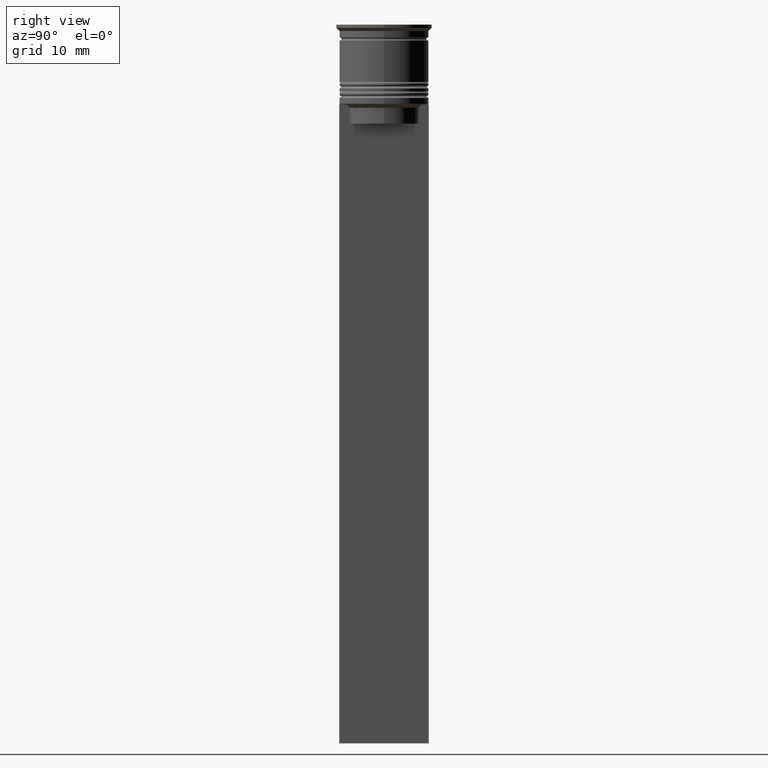
[diagram: clean part render]
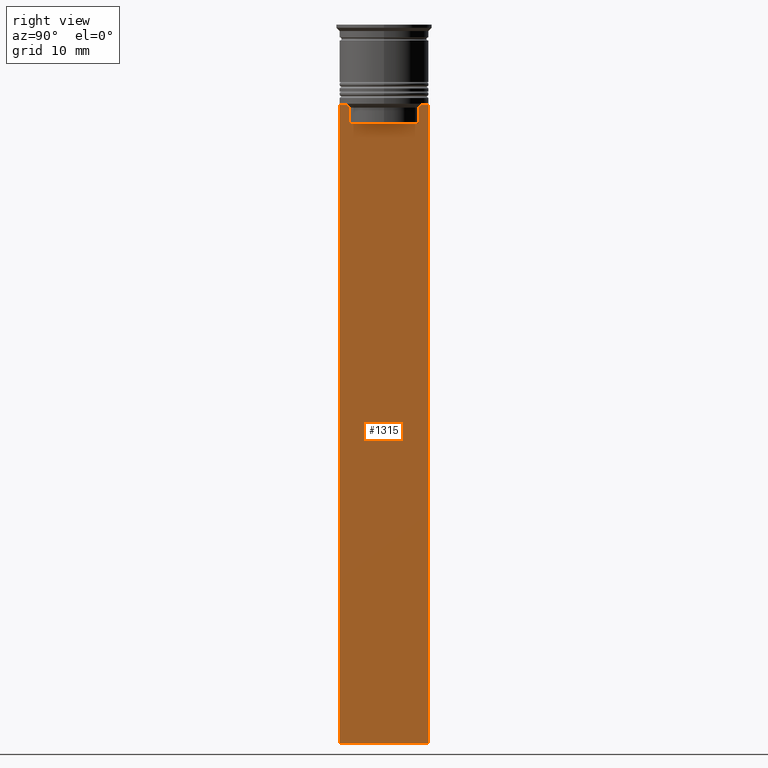
[diagram: same view with one face highlighted and labeled with its STEP entity id]
A machine part, right view. The second image highlights one B-rep face of the part: STEP entity #1315.
In plain terms, the highlighted planar face has unit normal (-1, 0, 0).
Its self-contained STEP definition (entity closure, byte-faithful):
#12 = EDGE_CURVE ( 'NONE', #1448, #25, #1511, .T. ) ;
#20 = CARTESIAN_POINT ( 'NONE',  ( 0.5000000000000000000, 7.000000000000002665, -12.50000000000000000 ) ) ;
#25 = VERTEX_POINT ( 'NONE', #2479 ) ;
#37 = VERTEX_POINT ( 'NONE', #811 ) ;
#42 = EDGE_CURVE ( 'NONE', #135, #37, #1497, .T. ) ;
#81 = DIRECTION ( 'NONE',  ( 0.000000000000000000, 0.000000000000000000, -1.000000000000000000 ) ) ;
#86 = VERTEX_POINT ( 'NONE', #1953 ) ;
#105 = DIRECTION ( 'NONE',  ( 0.000000000000000000, 0.000000000000000000, 1.000000000000000000 ) ) ;
#135 = VERTEX_POINT ( 'NONE', #1041 ) ;
#181 = DIRECTION ( 'NONE',  ( 0.000000000000000000, 0.000000000000000000, -1.000000000000000000 ) ) ;
#189 = CARTESIAN_POINT ( 'NONE',  ( 0.5000000000000000000, 7.000000000000002665, -112.5000000000000000 ) ) ;
#202 = ORIENTED_EDGE ( 'NONE', *, *, #42, .T. ) ;
#224 = CARTESIAN_POINT ( 'NONE',  ( 0.5000000000000000000, 5.878775382679629402, -12.50000000000000000 ) ) ;
#259 = EDGE_CURVE ( 'NONE', #736, #1122, #291, .T. ) ;
#291 = LINE ( 'NONE', #625, #965 ) ;
#295 = CARTESIAN_POINT ( 'NONE',  ( 0.5000000000000000000, -6.999999999999997335, 1.535668847618198329 ) ) ;
#305 = FACE_OUTER_BOUND ( 'NONE', #1880, .T. ) ;
#326 = VECTOR ( 'NONE', #1879, 1000.000000000000000 ) ;
#374 = LINE ( 'NONE', #835, #1682 ) ;
#393 = DIRECTION ( 'NONE',  ( 0.000000000000000000, -1.000000000000000000, 0.000000000000000000 ) ) ;
#456 = VECTOR ( 'NONE', #713, 1000.000000000000000 ) ;
#530 = ORIENTED_EDGE ( 'NONE', *, *, #1227, .T. ) ;
#534 = ORIENTED_EDGE ( 'NONE', *, *, #12, .T. ) ;
#557 = EDGE_CURVE ( 'NONE', #86, #947, #1913, .T. ) ;
#624 = EDGE_CURVE ( 'NONE', #935, #86, #1142, .T. ) ;
#625 = CARTESIAN_POINT ( 'NONE',  ( 0.5000000000000000000, -6.999999999999997335, -12.50000000000000000 ) ) ;
#657 = CARTESIAN_POINT ( 'NONE',  ( 0.5000000000000000000, 5.376802023508029826, 0.000000000000000000 ) ) ;
#681 = VECTOR ( 'NONE', #81, 1000.000000000000000 ) ;
#713 = DIRECTION ( 'NONE',  ( 0.000000000000000000, -1.000000000000000000, 0.000000000000000000 ) ) ;
#733 = DIRECTION ( 'NONE',  ( 0.000000000000000000, -1.000000000000000000, 0.000000000000000000 ) ) ;
#736 = VERTEX_POINT ( 'NONE', #20 ) ;
#759 = VECTOR ( 'NONE', #2476, 1000.000000000000000 ) ;
#771 = ORIENTED_EDGE ( 'NONE', *, *, #1960, .F. ) ;
#778 = ORIENTED_EDGE ( 'NONE', *, *, #1023, .T. ) ;
#807 = CARTESIAN_POINT ( 'NONE',  ( 0.5000000000000000000, -5.544156999454441959, -12.83336396790503642 ) ) ;
#811 = CARTESIAN_POINT ( 'NONE',  ( 0.5000000000000000000, 5.376802023508029826, -13.00000000000000178 ) ) ;
#829 = ORIENTED_EDGE ( 'NONE', *, *, #1869, .T. ) ;
#830 = LINE ( 'NONE', #657, #681 ) ;
#835 = CARTESIAN_POINT ( 'NONE',  ( 0.5000000000000000000, 7.000000000000002665, 1.535668847618198329 ) ) ;
#866 = CARTESIAN_POINT ( 'NONE',  ( 0.5000000000000000000, -5.376802023508029826, -13.00000000000000178 ) ) ;
#901 = B_SPLINE_CURVE_WITH_KNOTS ( 'NONE', 3,
 ( #1725, #807, #1574, #1626 ),
 .UNSPECIFIED., .F., .F.,
 ( 4, 4 ),
 ( 0.02539176325380714666, 0.02610162431828674801 ),
 .UNSPECIFIED. ) ;
#935 = VERTEX_POINT ( 'NONE', #2203 ) ;
#947 = VERTEX_POINT ( 'NONE', #189 ) ;
#965 = VECTOR ( 'NONE', #2089, 1000.000000000000000 ) ;
#1003 = VERTEX_POINT ( 'NONE', #1098 ) ;
#1016 = CARTESIAN_POINT ( 'NONE',  ( 0.5000000000000000000, 5.544156989057553275, -12.83336397825725861 ) ) ;
#1023 = EDGE_CURVE ( 'NONE', #1548, #1003, #1693, .T. ) ;
#1031 = DIRECTION ( 'NONE',  ( -0.000000000000000000, -0.000000000000000000, 1.000000000000000000 ) ) ;
#1041 = CARTESIAN_POINT ( 'NONE',  ( 0.5000000000000000000, 5.878775382679629402, -12.50000000000000000 ) ) ;
#1081 = AXIS2_PLACEMENT_3D ( 'NONE', #295, #2021, #105 ) ;
#1090 = VECTOR ( 'NONE', #733, 1000.000000000000000 ) ;
#1098 = CARTESIAN_POINT ( 'NONE',  ( 0.5000000000000000000, -5.376802023508029826, -15.50000000000000000 ) ) ;
#1108 = CARTESIAN_POINT ( 'NONE',  ( 0.5000000000000000000, -5.878775382679629402, -12.50000000000000000 ) ) ;
#1116 = CARTESIAN_POINT ( 'NONE',  ( 0.5000000000000000000, -6.999999999999997335, -12.50000000000000000 ) ) ;
#1122 = VERTEX_POINT ( 'NONE', #2309 ) ;
#1142 = LINE ( 'NONE', #1903, #1567 ) ;
#1143 = DIRECTION ( 'NONE',  ( 0.000000000000000000, 0.000000000000000000, -1.000000000000000000 ) ) ;
#1227 = EDGE_CURVE ( 'NONE', #37, #1548, #830, .T. ) ;
#1249 = PLANE ( 'NONE',  #1081 ) ;
#1315 = ADVANCED_FACE ( 'NONE', ( #305 ), #1249, .F. ) ;
#1318 = VERTEX_POINT ( 'NONE', #866 ) ;
#1321 = LINE ( 'NONE', #2485, #2023 ) ;
#1342 = ORIENTED_EDGE ( 'NONE', *, *, #557, .T. ) ;
#1355 = CARTESIAN_POINT ( 'NONE',  ( 0.5000000000000000000, 5.376802023508029826, -13.00000000000000178 ) ) ;
#1448 = VERTEX_POINT ( 'NONE', #1108 ) ;
#1497 = B_SPLINE_CURVE_WITH_KNOTS ( 'NONE', 3,
 ( #224, #1931, #1016, #1355 ),
 .UNSPECIFIED., .F., .F.,
 ( 4, 4 ),
 ( 0.01003009312103698807, 0.01073859663834952557 ),
 .UNSPECIFIED. ) ;
#1499 = LINE ( 'NONE', #1116, #326 ) ;
#1511 = LINE ( 'NONE', #1871, #1090 ) ;
#1548 = VERTEX_POINT ( 'NONE', #2158 ) ;
#1567 = VECTOR ( 'NONE', #181, 1000.000000000000000 ) ;
#1574 = CARTESIAN_POINT ( 'NONE',  ( 0.5000000000000000000, -5.711478856069293286, -12.66669469529570335 ) ) ;
#1626 = CARTESIAN_POINT ( 'NONE',  ( 0.5000000000000000000, -5.878775382679629402, -12.50000000000000000 ) ) ;
#1669 = ORIENTED_EDGE ( 'NONE', *, *, #2228, .T. ) ;
#1682 = VECTOR ( 'NONE', #1143, 1000.000000000000000 ) ;
#1693 = LINE ( 'NONE', #1909, #456 ) ;
#1722 = EDGE_CURVE ( 'NONE', #1003, #1318, #1827, .T. ) ;
#1725 = CARTESIAN_POINT ( 'NONE',  ( 0.5000000000000000000, -5.376802023508029826, -13.00000000000000178 ) ) ;
#1788 = CARTESIAN_POINT ( 'NONE',  ( 0.5000000000000000000, -5.376802023508029826, 0.000000000000000000 ) ) ;
#1827 = LINE ( 'NONE', #1788, #2123 ) ;
#1844 = ORIENTED_EDGE ( 'NONE', *, *, #624, .T. ) ;
#1869 = EDGE_CURVE ( 'NONE', #25, #935, #1499, .T. ) ;
#1871 = CARTESIAN_POINT ( 'NONE',  ( 0.5000000000000000000, -6.999999999999997335, -12.50000000000000000 ) ) ;
#1879 = DIRECTION ( 'NONE',  ( 0.000000000000000000, -1.000000000000000000, 0.000000000000000000 ) ) ;
#1880 = EDGE_LOOP ( 'NONE', ( #1669, #202, #530, #778, #2306, #2383, #534, #829, #1844, #1342, #771, #1937 ) ) ;
#1903 = CARTESIAN_POINT ( 'NONE',  ( 0.5000000000000000000, -6.999999999999997335, 1.535668847618198329 ) ) ;
#1909 = CARTESIAN_POINT ( 'NONE',  ( 0.5000000000000000000, 5.400000000000003908, -15.50000000000000000 ) ) ;
#1913 = LINE ( 'NONE', #2112, #759 ) ;
#1931 = CARTESIAN_POINT ( 'NONE',  ( 0.5000000000000000000, 5.711478846560141598, -12.66669470477064685 ) ) ;
#1937 = ORIENTED_EDGE ( 'NONE', *, *, #259, .T. ) ;
#1953 = CARTESIAN_POINT ( 'NONE',  ( 0.5000000000000000000, -6.999999999999997335, -112.5000000000000000 ) ) ;
#1960 = EDGE_CURVE ( 'NONE', #736, #947, #374, .T. ) ;
#2021 = DIRECTION ( 'NONE',  ( -1.000000000000000000, 0.000000000000000000, 0.000000000000000000 ) ) ;
#2023 = VECTOR ( 'NONE', #393, 1000.000000000000000 ) ;
#2063 = EDGE_CURVE ( 'NONE', #1318, #1448, #901, .T. ) ;
#2089 = DIRECTION ( 'NONE',  ( 0.000000000000000000, -1.000000000000000000, 0.000000000000000000 ) ) ;
#2112 = CARTESIAN_POINT ( 'NONE',  ( 0.5000000000000000000, -6.999999999999997335, -112.5000000000000000 ) ) ;
#2123 = VECTOR ( 'NONE', #1031, 1000.000000000000000 ) ;
#2158 = CARTESIAN_POINT ( 'NONE',  ( 0.5000000000000000000, 5.376802023508029826, -15.50000000000000000 ) ) ;
#2203 = CARTESIAN_POINT ( 'NONE',  ( 0.5000000000000000000, -6.999999999999997335, -12.50000000000000000 ) ) ;
#2228 = EDGE_CURVE ( 'NONE', #1122, #135, #1321, .T. ) ;
#2306 = ORIENTED_EDGE ( 'NONE', *, *, #1722, .T. ) ;
#2309 = CARTESIAN_POINT ( 'NONE',  ( 0.5000000000000000000, 6.881860213634102053, -12.50000000000000000 ) ) ;
#2383 = ORIENTED_EDGE ( 'NONE', *, *, #2063, .T. ) ;
#2476 = DIRECTION ( 'NONE',  ( 0.000000000000000000, 1.000000000000000000, 0.000000000000000000 ) ) ;
#2479 = CARTESIAN_POINT ( 'NONE',  ( 0.5000000000000000000, -6.881860213634102053, -12.50000000000000000 ) ) ;
#2485 = CARTESIAN_POINT ( 'NONE',  ( 0.5000000000000000000, -6.999999999999997335, -12.50000000000000000 ) ) ;